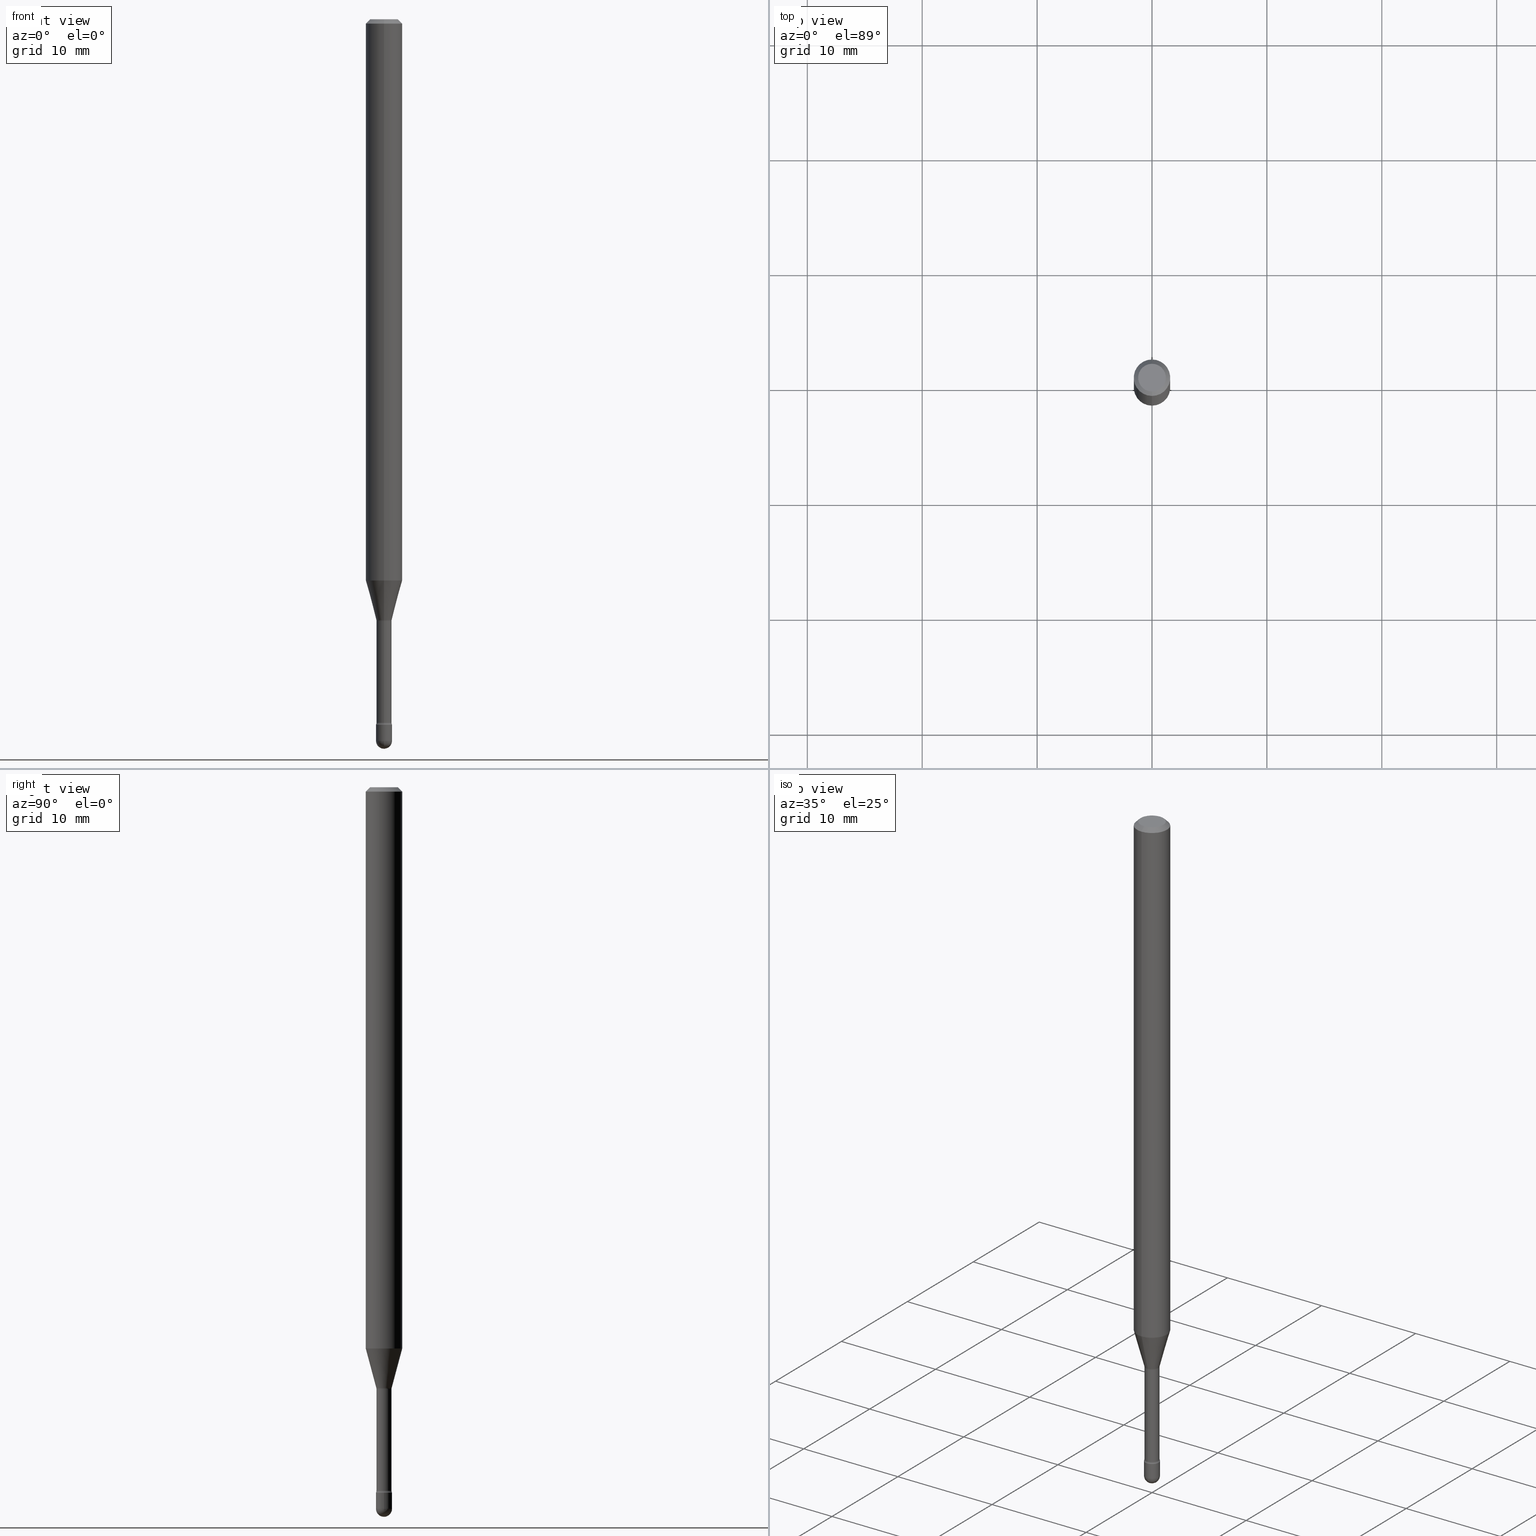
[diagram: canonical four-view strip — front | top / right | iso, engineering-drawing reading convention]
A machine part, canonical four-view strip (front | top / right | iso — engineering-drawing reading convention). The complete STEP part file that produces these views, byte-faithful:
ISO-10303-21;
HEADER;
FILE_DESCRIPTION (( 'STEP AP203' ),
    '1' );
FILE_NAME ('03870.STEP',
    '2024-04-09T20:51:50',
    ( '' ),
    ( '' ),
    'SwSTEP 2.0',
    'SolidWorks 2023',
    '' );
FILE_SCHEMA (( 'CONFIG_CONTROL_DESIGN' ));
ENDSEC;

DATA;
#1 = CARTESIAN_POINT ( 'NONE',  ( 6.046421623292749742E-29, -8.632687610289676724E-15, -2.472500000000000142 ) ) ;
#2 =( LENGTH_UNIT ( ) NAMED_UNIT ( * ) SI_UNIT ( $, .METRE. ) );
#3 = DIRECTION ( 'NONE',  ( -2.445468806185136597E-29, 3.491481338843145583E-15, 1.000000000000000000 ) ) ;
#4 = VERTEX_POINT ( 'NONE', #261 ) ;
#5 = APPROVAL_ROLE ( '' ) ;
#6 = DIRECTION ( 'NONE',  ( -2.445394526071442665E-29, 3.491587712193716491E-15, 1.000000000000000000 ) ) ;
#7 = CIRCLE ( 'NONE', #226, 0.02750000000000000014 ) ;
#8 = ORIENTED_EDGE ( 'NONE', *, *, #98, .F. ) ;
#9 = CARTESIAN_POINT ( 'NONE',  ( 4.440892098501093562E-16, 0.06249999999999326233, -1.923220337902601162 ) ) ;
#10 = EDGE_LOOP ( 'NONE', ( #102, #31, #296, #233, #194 ) ) ;
#11 = APPROVAL_STATUS ( 'not_yet_approved' ) ;
#12 = ADVANCED_FACE ( 'NONE', ( #474 ), #35, .T. ) ;
#13 = LINE ( 'NONE', #313, #379 ) ;
#14 = CALENDAR_DATE ( 2024, 9, 4 ) ;
#15 = CARTESIAN_POINT ( 'NONE',  ( -1.805095852181311577E-16, -0.02585000000000842874, -2.410160592130893509 ) ) ;
#16 = ORIENTED_EDGE ( 'NONE', *, *, #453, .F. ) ;
#17 = CIRCLE ( 'NONE', #411, 0.01500000000000002720 ) ;
#18 = AXIS2_PLACEMENT_3D ( 'NONE', #54, #486, #489 ) ;
#19 = DIRECTION ( 'NONE',  ( -2.445394526071442946E-29, 3.491587712193716491E-15, 1.000000000000000000 ) ) ;
#20 = ORIENTED_EDGE ( 'NONE', *, *, #180, .T. ) ;
#21 = DIRECTION ( 'NONE',  ( -2.445468806185136597E-29, 3.491481338843145583E-15, 1.000000000000000000 ) ) ;
#22 = MANIFOLD_SOLID_BREP ( 'Body-Move/Copy2[2]', #210 ) ;
#23 = ORIENTED_EDGE ( 'NONE', *, *, #453, .T. ) ;
#24 = EDGE_LOOP ( 'NONE', ( #506, #284, #195, #430 ) ) ;
#25 = CARTESIAN_POINT ( 'NONE',  ( -1.840786654675861532E-16, -0.02636111260567115810, -2.058092501787273321 ) ) ;
#26 = ORIENTED_EDGE ( 'NONE', *, *, #550, .T. ) ;
#27 = VERTEX_POINT ( 'NONE', #262 ) ;
#28 = CIRCLE ( 'NONE', #127, 0.02750000000000000014 ) ;
#29 = CC_DESIGN_APPROVAL ( #129, ( #539 ) ) ;
#30 = DIRECTION ( 'NONE',  ( -1.000000000000000000, 6.982962677686265922E-15, -4.883557194083112340E-29 ) ) ;
#31 = ORIENTED_EDGE ( 'NONE', *, *, #329, .T. ) ;
#32 = VECTOR ( 'NONE', #386, 39.37007874015748143 ) ;
#33 = CARTESIAN_POINT ( 'NONE',  ( 3.668091789107184615E-31, -5.237381568290603086E-17, -0.01500000000000008271 ) ) ;
#34 = ORIENTED_EDGE ( 'NONE', *, *, #420, .F. ) ;
#35 = CYLINDRICAL_SURFACE ( 'NONE', #475, 0.02585000000000000839 ) ;
#36 = CARTESIAN_POINT ( 'NONE',  ( 5.910698104549475684E-29, -8.438910395983882728E-15, -2.417000000000000259 ) ) ;
#37 = DIRECTION ( 'NONE',  ( -2.445394526071442946E-29, 3.491587712193716491E-15, 1.000000000000000000 ) ) ;
#38 = CIRCLE ( 'NONE', #446, 0.06250000000000000000 ) ;
#39 = DIRECTION ( 'NONE',  ( 1.000000000000000000, -6.982962677686266711E-15, 4.876176775795935793E-29 ) ) ;
#40 = CARTESIAN_POINT ( 'NONE',  ( -4.287811248607203282E-16, -0.06250000000000005551, -0.01499999999999986587 ) ) ;
#41 = CARTESIAN_POINT ( 'NONE',  ( 2.023012720015544593E-45, -2.889517326062876332E-31, -8.274197933739329035E-17 ) ) ;
#42 = CARTESIAN_POINT ( 'NONE',  ( 5.893972545952798109E-29, -8.415030731040159309E-15, -2.410160592130893509 ) ) ;
#43 = ORIENTED_EDGE ( 'NONE', *, *, #246, .T. ) ;
#44 = ADVANCED_FACE ( 'NONE', ( #77 ), #231, .F. ) ;
#45 = AXIS2_PLACEMENT_3D ( 'NONE', #64, #247, #235 ) ;
#46 = CARTESIAN_POINT ( 'NONE',  ( 3.668091789107184615E-31, -5.237381568290603086E-17, -0.01500000000000008271 ) ) ;
#47 = ORIENTED_EDGE ( 'NONE', *, *, #394, .F. ) ;
#48 = CYLINDRICAL_SURFACE ( 'NONE', #336, 0.02750000000000000014 ) ;
#49 = DIRECTION ( 'NONE',  ( 6.982962677686265922E-15, 1.000000000000000000, 0.000000000000000000 ) ) ;
#50 = DIRECTION ( 'NONE',  ( -6.982962677686265922E-15, -1.000000000000000000, 3.491587712193716491E-15 ) ) ;
#51 = AXIS2_PLACEMENT_3D ( 'NONE', #375, #142, #146 ) ;
#52 = ORIENTED_EDGE ( 'NONE', *, *, #414, .F. ) ;
#53 = DIRECTION ( 'NONE',  ( 0.000000000000000000, 0.000000000000000000, 1.000000000000000000 ) ) ;
#54 = CARTESIAN_POINT ( 'NONE',  ( 2.023012720015544593E-45, -2.889517326062876332E-31, -8.274197933739329035E-17 ) ) ;
#55 = EDGE_CURVE ( 'NONE', #349, #147, #116, .T. ) ;
#56 = VERTEX_POINT ( 'NONE', #382 ) ;
#57 =( NAMED_UNIT ( * ) SI_UNIT ( $, .STERADIAN. ) SOLID_ANGLE_UNIT ( ) );
#58 = DIRECTION ( 'NONE',  ( 1.000000000000000000, -6.982962677686279332E-15, 0.000000000000000000 ) ) ;
#59 = ORIENTED_EDGE ( 'NONE', *, *, #477, .T. ) ;
#60 = CC_DESIGN_PERSON_AND_ORGANIZATION_ASSIGNMENT ( #279, #179, ( #479 ) ) ;
#61 = COORDINATED_UNIVERSAL_TIME_OFFSET ( 5, 0, .BEHIND. ) ;
#62 = PLANE ( 'NONE',  #511 ) ;
#63 = AXIS2_PLACEMENT_3D ( 'NONE', #461, #322, #415 ) ;
#64 = CARTESIAN_POINT ( 'NONE',  ( 6.046421623292749742E-29, -8.632687610289676724E-15, -2.472500000000000142 ) ) ;
#65 = ORIENTED_EDGE ( 'NONE', *, *, #217, .F. ) ;
#66 = CARTESIAN_POINT ( 'NONE',  ( -1.169113584055446105E-44, 1.669184350826100908E-30, 4.780733988912460139E-16 ) ) ;
#67 = ORIENTED_EDGE ( 'NONE', *, *, #180, .F. ) ;
#68 = DIRECTION ( 'NONE',  ( 6.982962677686265922E-15, 1.000000000000000000, -3.491587712193716491E-15 ) ) ;
#69 = EDGE_LOOP ( 'NONE', ( #85, #337, #112, #319 ) ) ;
#70 = ORIENTED_EDGE ( 'NONE', *, *, #439, .T. ) ;
#71 = CIRCLE ( 'NONE', #401, 0.02585000000000001533 ) ;
#72 = DIRECTION ( 'NONE',  ( -2.445394526071442946E-29, 3.491587712193716491E-15, 1.000000000000000000 ) ) ;
#73 = ORIENTED_EDGE ( 'NONE', *, *, #416, .F. ) ;
#74 = ADVANCED_FACE ( 'NONE', ( #338 ), #389, .T. ) ;
#75 = CIRCLE ( 'NONE', #504, 0.02584999999999999798 ) ;
#76 = DIRECTION ( 'NONE',  ( -2.445394526071442946E-29, 3.491587712193716491E-15, 1.000000000000000000 ) ) ;
#77 = FACE_OUTER_BOUND ( 'NONE', #464, .T. ) ;
#78 = CC_DESIGN_DATE_AND_TIME_ASSIGNMENT ( #91, #452, ( #193 ) ) ;
#79 = DIRECTION ( 'NONE',  ( -2.445394526071442946E-29, 3.491587712193716491E-15, 1.000000000000000000 ) ) ;
#80 = DIRECTION ( 'NONE',  ( -6.982962677686266711E-15, -1.000000000000000000, 0.000000000000000000 ) ) ;
#81 = CIRCLE ( 'NONE', #321, 0.06250000000000000000 ) ;
#82 = DIRECTION ( 'NONE',  ( -2.445468806185136877E-29, 3.491481338843145188E-15, 1.000000000000000000 ) ) ;
#83 = DIRECTION ( 'NONE',  ( -6.982962677686265922E-15, -1.000000000000000000, 3.491587712193716491E-15 ) ) ;
#84 = EDGE_CURVE ( 'NONE', #27, #56, #471, .T. ) ;
#85 = ORIENTED_EDGE ( 'NONE', *, *, #383, .T. ) ;
#86 = APPLICATION_CONTEXT ( 'configuration controlled 3d designs of mechanical parts and assemblies' ) ;
#87 = CARTESIAN_POINT ( 'NONE',  ( 0.02750000000000000014, -1.920314736363723444E-16, 1.340948613343882413E-30 ) ) ;
#88 = CONICAL_SURFACE ( 'NONE', #347, 0.02636111260566397288, 0.2617993877991497409 ) ;
#89 = CARTESIAN_POINT ( 'NONE',  ( 4.440892098500625669E-16, 0.06250000000000000000, 2.598491668791387825E-16 ) ) ;
#90 = CARTESIAN_POINT ( 'NONE',  ( 5.910698104549475684E-29, -8.438910395983882728E-15, -2.417000000000000259 ) ) ;
#91 = DATE_AND_TIME ( #95, #140 ) ;
#92 = CC_DESIGN_PERSON_AND_ORGANIZATION_ASSIGNMENT ( #317, #320, ( #539 ) ) ;
#93 = ADVANCED_FACE ( 'NONE', ( #124 ), #497, .F. ) ;
#94 = DIRECTION ( 'NONE',  ( -2.445394526071442665E-29, 3.491587712193716491E-15, 1.000000000000000000 ) ) ;
#95 = CALENDAR_DATE ( 2024, 9, 4 ) ;
#96 = LINE ( 'NONE', #89, #177 ) ;
#97 = CIRCLE ( 'NONE', #239, 0.02750000000000000014 ) ;
#98 = EDGE_CURVE ( 'NONE', #293, #56, #75, .T. ) ;
#99 = APPROVAL_ROLE ( '' ) ;
#100 = CARTESIAN_POINT ( 'NONE',  ( 3.668091789107184615E-31, -5.237381568290603086E-17, -0.01500000000000008271 ) ) ;
#101 = CARTESIAN_POINT ( 'NONE',  ( 6.046421623292748621E-29, -8.632687610289675147E-15, -2.472499999999999254 ) ) ;
#102 = ORIENTED_EDGE ( 'NONE', *, *, #508, .F. ) ;
#103 = ORIENTED_EDGE ( 'NONE', *, *, #343, .F. ) ;
#104 = CALENDAR_DATE ( 2024, 9, 4 ) ;
#105 = DIRECTION ( 'NONE',  ( 1.000000000000000000, -7.105427357601001070E-15, 4.926316811239915020E-29 ) ) ;
#106 = AXIS2_PLACEMENT_3D ( 'NONE', #428, #554, #335 ) ;
#107 = LOCAL_TIME ( 16, 51, 50.00000000000000000, #490 ) ;
#108 = DIRECTION ( 'NONE',  ( -6.982962677686266711E-15, -1.000000000000000000, 0.000000000000000000 ) ) ;
#109 = ORIENTED_EDGE ( 'NONE', *, *, #183, .F. ) ;
#110 = DIRECTION ( 'NONE',  ( -6.982962677686265922E-15, -1.000000000000000000, 4.370956789862821150E-15 ) ) ;
#111 = FACE_OUTER_BOUND ( 'NONE', #346, .T. ) ;
#112 = ORIENTED_EDGE ( 'NONE', *, *, #477, .F. ) ;
#113 = EDGE_CURVE ( 'NONE', #4, #549, #258, .T. ) ;
#114 = AXIS2_PLACEMENT_3D ( 'NONE', #540, #190, #419 ) ;
#115 = CARTESIAN_POINT ( 'NONE',  ( 3.668091789107184615E-31, -5.237381568290603086E-17, -0.01500000000000008271 ) ) ;
#116 = LINE ( 'NONE', #432, #201 ) ;
#117 = CARTESIAN_POINT ( 'NONE',  ( 5.032848138019279086E-29, -7.186010489798467438E-15, -2.058092501787273321 ) ) ;
#118 = ORIENTED_EDGE ( 'NONE', *, *, #380, .T. ) ;
#119 = DIRECTION ( 'NONE',  ( -2.445468806185136597E-29, 3.491481338843145583E-15, 1.000000000000000000 ) ) ;
#120 = EDGE_LOOP ( 'NONE', ( #286, #118, #541, #167 ) ) ;
#121 = DIRECTION ( 'NONE',  ( 1.000000000000000000, -6.982962677686279332E-15, 0.000000000000000000 ) ) ;
#122 = CC_DESIGN_PERSON_AND_ORGANIZATION_ASSIGNMENT ( #368, #456, ( #193 ) ) ;
#123 = LOCAL_TIME ( 16, 51, 50.00000000000000000, #237 ) ;
#124 = FACE_OUTER_BOUND ( 'NONE', #204, .T. ) ;
#125 = AXIS2_PLACEMENT_3D ( 'NONE', #308, #37, #558 ) ;
#126 = ORIENTED_EDGE ( 'NONE', *, *, #98, .T. ) ;
#127 = AXIS2_PLACEMENT_3D ( 'NONE', #559, #257, #384 ) ;
#128 = CARTESIAN_POINT ( 'NONE',  ( 5.032848138019279086E-29, -7.186010489798467438E-15, -2.058092501787273321 ) ) ;
#129 = APPROVAL ( #11, 'UNSPECIFIED' ) ;
#130 = LINE ( 'NONE', #266, #406 ) ;
#131 = EDGE_LOOP ( 'NONE', ( #433, #501, #524, #73 ) ) ;
#132 = SECURITY_CLASSIFICATION_LEVEL ( 'unclassified' ) ;
#133 = VECTOR ( 'NONE', #561, 39.37007874015748143 ) ;
#134 = CARTESIAN_POINT ( 'NONE',  ( -1.805095852181900264E-16, -0.02585000000000000839, 5.683309412514536099E-16 ) ) ;
#135 = VERTEX_POINT ( 'NONE', #277 ) ;
#136 = PERSON_AND_ORGANIZATION_ROLE ( 'design_supplier' ) ;
#137 = ADVANCED_FACE ( 'NONE', ( #482 ), #215, .T. ) ;
#138 = ADVANCED_FACE ( 'NONE', ( #530 ), #481, .T. ) ;
#139 = DIRECTION ( 'NONE',  ( 2.445394526071442665E-29, -3.491587712193716491E-15, -1.000000000000000000 ) ) ;
#140 = LOCAL_TIME ( 16, 51, 50.00000000000000000, #61 ) ;
#141 = EDGE_LOOP ( 'NONE', ( #519, #467, #326, #65 ) ) ;
#142 = DIRECTION ( 'NONE',  ( -2.445394526071442946E-29, 3.491587712193716491E-15, 1.000000000000000000 ) ) ;
#143 = VERTEX_POINT ( 'NONE', #181 ) ;
#144 = ORIENTED_EDGE ( 'NONE', *, *, #278, .T. ) ;
#145 = DESIGN_CONTEXT ( 'detailed design', #86, 'design' ) ;
#146 = DIRECTION ( 'NONE',  ( -6.982962677686265922E-15, -1.000000000000000000, 0.000000000000000000 ) ) ;
#147 = VERTEX_POINT ( 'NONE', #395 ) ;
#148 = DIRECTION ( 'NONE',  ( -6.982962677686265922E-15, -1.000000000000000000, 3.483106191921935554E-15 ) ) ;
#149 = CIRCLE ( 'NONE', #106, 0.02750000000000000014 ) ;
#150 = DIRECTION ( 'NONE',  ( -6.982962677686263555E-15, -1.000000000000000000, 0.000000000000000000 ) ) ;
#151 = ORIENTED_EDGE ( 'NONE', *, *, #254, .F. ) ;
#152 = ORIENTED_EDGE ( 'NONE', *, *, #238, .T. ) ;
#153 = DIRECTION ( 'NONE',  ( -2.445394526071442946E-29, 3.491587712193716491E-15, 1.000000000000000000 ) ) ;
#154 = ORIENTED_EDGE ( 'NONE', *, *, #84, .T. ) ;
#155 = DIRECTION ( 'NONE',  ( 6.982962677686265922E-15, 1.000000000000000000, 0.000000000000000000 ) ) ;
#156 = DIRECTION ( 'NONE',  ( -2.445394526071442946E-29, 3.491587712193716491E-15, 1.000000000000000000 ) ) ;
#157 = CIRCLE ( 'NONE', #483, 0.06250000000000000000 ) ;
#158 = CIRCLE ( 'NONE', #445, 0.02750000000000009034 ) ;
#159 = CYLINDRICAL_SURFACE ( 'NONE', #457, 0.02585000000000000839 ) ;
#160 = VERTEX_POINT ( 'NONE', #228 ) ;
#161 = AXIS2_PLACEMENT_3D ( 'NONE', #309, #355, #527 ) ;
#162 = FACE_OUTER_BOUND ( 'NONE', #141, .T. ) ;
#163 = ORIENTED_EDGE ( 'NONE', *, *, #55, .F. ) ;
#164 = DIRECTION ( 'NONE',  ( 1.000000000000000000, -6.982962677686265922E-15, 4.876176775795935793E-29 ) ) ;
#165 = CARTESIAN_POINT ( 'NONE',  ( 0.02750000000000000014, -8.630941869620256010E-15, -2.417000000000000259 ) ) ;
#166 = AXIS2_PLACEMENT_3D ( 'NONE', #36, #208, #164 ) ;
#167 = ORIENTED_EDGE ( 'NONE', *, *, #364, .F. ) ;
#168 = ADVANCED_FACE ( 'NONE', ( #311 ), #232, .T. ) ;
#169 = CARTESIAN_POINT ( 'NONE',  ( 1.953992523340867413E-16, 0.02749999999999157632, -2.417000000000000259 ) ) ;
#170 = EDGE_CURVE ( 'NONE', #410, #290, #158, .T. ) ;
#171 = DIRECTION ( 'NONE',  ( 1.000000000000000000, -6.982962677686266711E-15, 4.876176775795935793E-29 ) ) ;
#172 = VERTEX_POINT ( 'NONE', #169 ) ;
#173 = COORDINATED_UNIVERSAL_TIME_OFFSET ( 5, 0, .BEHIND. ) ;
#174 = CIRCLE ( 'NONE', #353, 0.04749999999999999362 ) ;
#175 = DIRECTION ( 'NONE',  ( -6.982962677686265922E-15, -1.000000000000000000, 3.491587712193716491E-15 ) ) ;
#176 = DIRECTION ( 'NONE',  ( 1.000000000000000000, 0.000000000000000000, 0.000000000000000000 ) ) ;
#177 = VECTOR ( 'NONE', #178, 39.37007874015748143 ) ;
#178 = DIRECTION ( 'NONE',  ( -2.445394526071442665E-29, 3.491587712193716491E-15, 1.000000000000000000 ) ) ;
#179 = PERSON_AND_ORGANIZATION_ROLE ( 'design_owner' ) ;
#180 = EDGE_CURVE ( 'NONE', #4, #555, #427, .T. ) ;
#181 = CARTESIAN_POINT ( 'NONE',  ( -1.953992523339673522E-16, -0.02750000000000868070, -2.472499999999999254 ) ) ;
#182 = DATE_AND_TIME ( #14, #306 ) ;
#183 = EDGE_CURVE ( 'NONE', #27, #172, #188, .T. ) ;
#184 = CIRCLE ( 'NONE', #45, 0.02750000000000009034 ) ;
#185 = DIRECTION ( 'NONE',  ( 7.105427357600997914E-15, 1.000000000000000000, 0.000000000000000000 ) ) ;
#186 = AXIS2_PLACEMENT_3D ( 'NONE', #370, #30, #192 ) ;
#187 = VERTEX_POINT ( 'NONE', #316 ) ;
#188 = CIRCLE ( 'NONE', #267, 0.01500000000000002720 ) ;
#189 = ORIENTED_EDGE ( 'NONE', *, *, #329, .F. ) ;
#190 = DIRECTION ( 'NONE',  ( -2.445394526071442946E-29, 3.491587712193716491E-15, 1.000000000000000000 ) ) ;
#191 = ORIENTED_EDGE ( 'NONE', *, *, #416, .T. ) ;
#192 = DIRECTION ( 'NONE',  ( -6.982962677686263555E-15, -1.000000000000000000, 0.000000000000000000 ) ) ;
#193 = PRODUCT_DEFINITION ( 'UNKNOWN', '', #547, #145 ) ;
#194 = ORIENTED_EDGE ( 'NONE', *, *, #278, .F. ) ;
#195 = ORIENTED_EDGE ( 'NONE', *, *, #343, .T. ) ;
#196 = CARTESIAN_POINT ( 'NONE',  ( 2.902567075580512468E-16, 0.04084999999999280179, -2.061974787463811243 ) ) ;
#197 = AXIS2_PLACEMENT_3D ( 'NONE', #117, #153, #507 ) ;
#198 = AXIS2_PLACEMENT_3D ( 'NONE', #324, #53, #176 ) ;
#199 = AXIS2_PLACEMENT_3D ( 'NONE', #407, #6, #175 ) ;
#200 = CARTESIAN_POINT ( 'NONE',  ( 5.042341858161331216E-29, -7.199565830761894010E-15, -2.061974787463811243 ) ) ;
#201 = VECTOR ( 'NONE', #302, 39.37007874015748854 ) ;
#202 = EDGE_LOOP ( 'NONE', ( #388, #70, #43, #281 ) ) ;
#203 = DIRECTION ( 'NONE',  ( -6.982962677686266711E-15, -1.000000000000000000, 3.491587712193716491E-15 ) ) ;
#204 = EDGE_LOOP ( 'NONE', ( #425, #378, #563, #126 ) ) ;
#205 = CARTESIAN_POINT ( 'NONE',  ( -0.02750000000000000014, -8.340399750802750818E-15, -2.417000000000000259 ) ) ;
#206 = VERTEX_POINT ( 'NONE', #9 ) ;
#207 = AXIS2_PLACEMENT_3D ( 'NONE', #33, #512, #431 ) ;
#208 = DIRECTION ( 'NONE',  ( -2.438088387897960049E-29, 3.491481338843145188E-15, 1.000000000000000000 ) ) ;
#209 = CARTESIAN_POINT ( 'NONE',  ( -1.169113584055446105E-44, 1.669184350826100908E-30, 4.780733988912460139E-16 ) ) ;
#210 = CLOSED_SHELL ( 'NONE', ( #263, #12, #358, #137, #74, #348, #138, #291, #516, #332, #214, #44, #491, #93 ) ) ;
#211 = CARTESIAN_POINT ( 'NONE',  ( 0.02750000000000000014, -8.727830476773152219E-15, -2.472499999999999254 ) ) ;
#212 = DIRECTION ( 'NONE',  ( -6.982962677686265922E-15, -1.000000000000000000, 3.491587712193716491E-15 ) ) ;
#213 = MANIFOLD_SOLID_BREP ( 'Body-Move/Copy2[1]', #423 ) ;
#214 = ADVANCED_FACE ( 'NONE', ( #362 ), #492, .F. ) ;
#215 = CONICAL_SURFACE ( 'NONE', #544, 0.06250000000000000000, 0.7853981633974483900 ) ;
#216 = ORIENTED_EDGE ( 'NONE', *, *, #271, .F. ) ;
#217 = EDGE_CURVE ( 'NONE', #143, #509, #357, .T. ) ;
#218 = CARTESIAN_POINT ( 'NONE',  ( 3.840629472727447874E-16, 0.04749999999999999362, -2.485923956665947867E-16 ) ) ;
#219 = VECTOR ( 'NONE', #264, 39.37007874015748143 ) ;
#220 = DIRECTION ( 'NONE',  ( -6.982962677686265922E-15, -1.000000000000000000, 0.000000000000000000 ) ) ;
#221 = CARTESIAN_POINT ( 'NONE',  ( 0.000000000000000000, 0.000000000000000000, 0.000000000000000000 ) ) ;
#222 = APPROVAL_STATUS ( 'not_yet_approved' ) ;
#223 = APPLICATION_CONTEXT ( 'configuration controlled 3d designs of mechanical parts and assemblies' ) ;
#224 = DIRECTION ( 'NONE',  ( 1.000000000000000000, -6.982962677686265922E-15, 4.883557194083112340E-29 ) ) ;
#225 = APPLICATION_PROTOCOL_DEFINITION ( 'international standard', 'config_control_design', 1994, #223 ) ;
#226 = AXIS2_PLACEMENT_3D ( 'NONE', #101, #496, #58 ) ;
#227 = LOCAL_TIME ( 16, 51, 50.00000000000000000, #173 ) ;
#228 = CARTESIAN_POINT ( 'NONE',  ( -1.920314736363132784E-16, -0.02750000000000845865, -2.416999999999999815 ) ) ;
#229 = EDGE_CURVE ( 'NONE', #206, #135, #96, .T. ) ;
#230 = DATE_TIME_ROLE ( 'classification_date' ) ;
#231 = TOROIDAL_SURFACE ( 'NONE', #376, 0.04085000000000003906, 0.01500000000000002373 ) ;
#232 = SPHERICAL_SURFACE ( 'NONE', #285, 0.02750000000000009034 ) ;
#233 = ORIENTED_EDGE ( 'NONE', *, *, #271, .T. ) ;
#234 = APPROVAL_ROLE ( '' ) ;
#235 = DIRECTION ( 'NONE',  ( -7.105427357601001070E-15, -1.000000000000000000, 0.000000000000000000 ) ) ;
#236 = ORIENTED_EDGE ( 'NONE', *, *, #84, .F. ) ;
#237 = COORDINATED_UNIVERSAL_TIME_OFFSET ( 5, 0, .BEHIND. ) ;
#238 = EDGE_CURVE ( 'NONE', #187, #206, #130, .T. ) ;
#239 = AXIS2_PLACEMENT_3D ( 'NONE', #330, #505, #333 ) ;
#240 = LINE ( 'NONE', #295, #327 ) ;
#241 = CC_DESIGN_APPROVAL ( #525, ( #193 ) ) ;
#242 = CC_DESIGN_DATE_AND_TIME_ASSIGNMENT ( #447, #230, ( #539 ) ) ;
#243 = DIRECTION ( 'NONE',  ( 4.937700262164548042E-15, 0.7071067811865451302, -0.7071067811865499042 ) ) ;
#244 = FACE_OUTER_BOUND ( 'NONE', #397, .T. ) ;
#245 = EDGE_LOOP ( 'NONE', ( #462, #152, #494, #163 ) ) ;
#246 = EDGE_CURVE ( 'NONE', #147, #549, #13, .T. ) ;
#247 = DIRECTION ( 'NONE',  ( -1.000000000000000000, 7.105427357601001070E-15, -4.926315508542082329E-29 ) ) ;
#248 = ORIENTED_EDGE ( 'NONE', *, *, #254, .T. ) ;
#249 = AXIS2_PLACEMENT_3D ( 'NONE', #517, #562, #155 ) ;
#250 = AXIS2_PLACEMENT_3D ( 'NONE', #532, #480, #121 ) ;
#251 = ORIENTED_EDGE ( 'NONE', *, *, #394, .T. ) ;
#252 = DIRECTION ( 'NONE',  ( -6.982962677686265922E-15, -1.000000000000000000, 3.483106191921935554E-15 ) ) ;
#253 = ORIENTED_EDGE ( 'NONE', *, *, #318, .T. ) ;
#254 = EDGE_CURVE ( 'NONE', #360, #293, #444, .T. ) ;
#255 = CARTESIAN_POINT ( 'NONE',  ( -1.169113584055446105E-44, 1.669184350826100908E-30, 4.780733988912460139E-16 ) ) ;
#256 = CARTESIAN_POINT ( 'NONE',  ( 1.836752971939859330E-16, 0.02585000000000000839, 3.878158565310384180E-16 ) ) ;
#257 = DIRECTION ( 'NONE',  ( -2.445468806185136597E-29, 3.491481338843145583E-15, 1.000000000000000000 ) ) ;
#258 = LINE ( 'NONE', #40, #133 ) ;
#259 = AXIS2_PLACEMENT_3D ( 'NONE', #100, #19, #148 ) ;
#260 = FACE_OUTER_BOUND ( 'NONE', #24, .T. ) ;
#261 = CARTESIAN_POINT ( 'NONE',  ( -3.773273898774340269E-16, -0.04749999999999999362, 8.310843699180823065E-17 ) ) ;
#262 = CARTESIAN_POINT ( 'NONE',  ( 1.895372747640658455E-16, 0.02584999999999160192, -2.410160592130893509 ) ) ;
#263 = ADVANCED_FACE ( 'NONE', ( #440 ), #546, .F. ) ;
#264 = DIRECTION ( 'NONE',  ( -2.445468806185136877E-29, 3.491481338843145188E-15, 1.000000000000000000 ) ) ;
#265 = CIRCLE ( 'NONE', #186, 0.01500000000000002720 ) ;
#266 = CARTESIAN_POINT ( 'NONE',  ( 1.873069706851357136E-16, 0.02636111260565679112, -2.058092501787273321 ) ) ;
#267 = AXIS2_PLACEMENT_3D ( 'NONE', #400, #404, #351 ) ;
#268 = PERSON ( 'UNSPECIFIED', 'UNSPECIFIED', 'UNSPECIFIED', ('UNSPECIFIED'), ('UNSPECIFIED'), ('UNSPECIFIED') ) ;
#269 = DIRECTION ( 'NONE',  ( -2.445394526071442946E-29, 3.491587712193716491E-15, 1.000000000000000000 ) ) ;
#270 = PERSON_AND_ORGANIZATION ( #268, #484 ) ;
#271 = EDGE_CURVE ( 'NONE', #509, #565, #396, .T. ) ;
#272 = ADVANCED_FACE ( 'NONE', ( #526 ), #48, .T. ) ;
#273 = DIRECTION ( 'NONE',  ( -2.445394526071442665E-29, 3.491587712193716491E-15, 1.000000000000000000 ) ) ;
#274 = CALENDAR_DATE ( 2024, 9, 4 ) ;
#275 = CIRCLE ( 'NONE', #51, 0.02585000000000001533 ) ;
#276 = APPROVAL_PERSON_ORGANIZATION ( #405, #129, #99 ) ;
#277 = CARTESIAN_POINT ( 'NONE',  ( 4.440892098501099478E-16, 0.06249999999999995143, -0.01500000000000030129 ) ) ;
#278 = EDGE_CURVE ( 'NONE', #459, #565, #536, .T. ) ;
#279 = PERSON_AND_ORGANIZATION ( #268, #484 ) ;
#280 = DIRECTION ( 'NONE',  ( -2.445394526071442946E-29, 3.491587712193716491E-15, 1.000000000000000000 ) ) ;
#281 = ORIENTED_EDGE ( 'NONE', *, *, #315, .F. ) ;
#282 = APPROVAL_STATUS ( 'not_yet_approved' ) ;
#283 = DIRECTION ( 'NONE',  ( -2.445394526071442946E-29, 3.491587712193716491E-15, 1.000000000000000000 ) ) ;
#284 = ORIENTED_EDGE ( 'NONE', *, *, #520, .F. ) ;
#285 = AXIS2_PLACEMENT_3D ( 'NONE', #1, #442, #49 ) ;
#286 = ORIENTED_EDGE ( 'NONE', *, *, #318, .F. ) ;
#287 = APPROVAL_DATE_TIME ( #361, #525 ) ;
#288 = CIRCLE ( 'NONE', #374, 0.01500000000000002720 ) ;
#289 = CARTESIAN_POINT ( 'NONE',  ( 4.703032486736291422E-29, -6.715092499661768359E-15, -1.923220337902600940 ) ) ;
#290 = VERTEX_POINT ( 'NONE', #545 ) ;
#291 = ADVANCED_FACE ( 'NONE', ( #377 ), #458, .T. ) ;
#292 = DIRECTION ( 'NONE',  ( -2.445394526071442946E-29, 3.491587712193716491E-15, 1.000000000000000000 ) ) ;
#293 = VERTEX_POINT ( 'NONE', #371 ) ;
#294 = DIMENSIONAL_EXPONENTS ( 1.000000000000000000, 0.000000000000000000, 0.000000000000000000, 0.000000000000000000, 0.000000000000000000, 0.000000000000000000, 0.000000000000000000 ) ;
#295 = CARTESIAN_POINT ( 'NONE',  ( 4.364351673553919652E-16, 0.06249999999999995143, -0.01500000000000030129 ) ) ;
#296 = ORIENTED_EDGE ( 'NONE', *, *, #217, .T. ) ;
#297 = DIRECTION ( 'NONE',  ( -6.982962677686265922E-15, -1.000000000000000000, 3.491587712193714913E-15 ) ) ;
#298 = AXIS2_PLACEMENT_3D ( 'NONE', #90, #21, #412 ) ;
#299 = CARTESIAN_POINT ( 'NONE',  ( -4.364351673553912750E-16, -0.06250000000000005551, -0.01499999999999986587 ) ) ;
#300 = DIRECTION ( 'NONE',  ( -2.445394526071442946E-29, 3.491587712193716491E-15, 1.000000000000000000 ) ) ;
#301 = CYLINDRICAL_SURFACE ( 'NONE', #385, 0.02750000000000000014 ) ;
#302 = DIRECTION ( 'NONE',  ( -1.807323732225326589E-15, -0.2588190451025176864, 0.9659258262890690894 ) ) ;
#303 = CARTESIAN_POINT ( 'NONE',  ( 5.893793518949994721E-29, -8.415287107897758310E-15, -2.410160592130893509 ) ) ;
#304 = ORIENTED_EDGE ( 'NONE', *, *, #55, .T. ) ;
#305 = CIRCLE ( 'NONE', #437, 0.02636111260566397288 ) ;
#306 = LOCAL_TIME ( 16, 51, 50.00000000000000000, #408 ) ;
#307 = ADVANCED_BREP_SHAPE_REPRESENTATION ( '03870', ( #213, #22, #198 ), #448 ) ;
#308 = CARTESIAN_POINT ( 'NONE',  ( 5.042495021882977278E-29, -7.199346491594957995E-15, -2.061974787463811243 ) ) ;
#309 = CARTESIAN_POINT ( 'NONE',  ( 6.046421623292748621E-29, -8.632687610289675147E-15, -2.472499999999999254 ) ) ;
#310 = PRODUCT_DEFINITION_SHAPE ( 'NONE', 'NONE',  #193 ) ;
#311 = FACE_OUTER_BOUND ( 'NONE', #455, .T. ) ;
#312 = CONICAL_SURFACE ( 'NONE', #207, 0.06250000000000000000, 0.7853981633974483900 ) ;
#313 = CARTESIAN_POINT ( 'NONE',  ( -4.364351673553916201E-16, -0.06250000000000000000, 6.962976309033533439E-16 ) ) ;
#314 = DATE_AND_TIME ( #534, #123 ) ;
#315 = EDGE_CURVE ( 'NONE', #135, #549, #564, .T. ) ;
#316 = CARTESIAN_POINT ( 'NONE',  ( 3.156980902676227198E-16, 0.02636111260565679112, -2.058092501787273321 ) ) ;
#317 = PERSON_AND_ORGANIZATION ( #268, #484 ) ;
#318 = EDGE_CURVE ( 'NONE', #187, #349, #305, .T. ) ;
#319 = ORIENTED_EDGE ( 'NONE', *, *, #246, .F. ) ;
#320 = PERSON_AND_ORGANIZATION_ROLE ( 'classification_officer' ) ;
#321 = AXIS2_PLACEMENT_3D ( 'NONE', #115, #465, #252 ) ;
#322 = DIRECTION ( 'NONE',  ( -2.445468806185136597E-29, 3.491481338843145583E-15, 1.000000000000000000 ) ) ;
#323 = ORIENTED_EDGE ( 'NONE', *, *, #439, .F. ) ;
#324 = CARTESIAN_POINT ( 'NONE',  ( 0.000000000000000000, 0.000000000000000000, 0.000000000000000000 ) ) ;
#325 = DIRECTION ( 'NONE',  ( -2.445394526071442946E-29, 3.491587712193716491E-15, 1.000000000000000000 ) ) ;
#326 = ORIENTED_EDGE ( 'NONE', *, *, #551, .F. ) ;
#327 = VECTOR ( 'NONE', #243, 39.37007874015748143 ) ;
#328 = CARTESIAN_POINT ( 'NONE',  ( 5.032848138019279086E-29, -7.186010489798467438E-15, -2.058092501787273321 ) ) ;
#329 = EDGE_CURVE ( 'NONE', #469, #143, #7, .T. ) ;
#330 = CARTESIAN_POINT ( 'NONE',  ( 5.910518569514678335E-29, -8.439167500372212858E-15, -2.417000000000000259 ) ) ;
#331 = EDGE_LOOP ( 'NONE', ( #67, #399, #59, #103 ) ) ;
#332 = ADVANCED_FACE ( 'NONE', ( #244 ), #62, .F. ) ;
#333 = DIRECTION ( 'NONE',  ( -6.982962677686266711E-15, -1.000000000000000000, 0.000000000000000000 ) ) ;
#334 = EDGE_CURVE ( 'NONE', #410, #143, #184, .T. ) ;
#335 = DIRECTION ( 'NONE',  ( -6.982962677686266711E-15, -1.000000000000000000, 0.000000000000000000 ) ) ;
#336 = AXIS2_PLACEMENT_3D ( 'NONE', #221, #3, #171 ) ;
#337 = ORIENTED_EDGE ( 'NONE', *, *, #229, .T. ) ;
#338 = FACE_OUTER_BOUND ( 'NONE', #69, .T. ) ;
#339 = CC_DESIGN_SECURITY_CLASSIFICATION ( #539, ( #547 ) ) ;
#340 = DIRECTION ( 'NONE',  ( -6.982962677686265922E-15, -1.000000000000000000, 0.000000000000000000 ) ) ;
#341 = APPROVAL ( #222, 'UNSPECIFIED' ) ;
#342 = DIRECTION ( 'NONE',  ( -6.982962677686265922E-15, -1.000000000000000000, 3.491587712193714913E-15 ) ) ;
#343 = EDGE_CURVE ( 'NONE', #555, #135, #240, .T. ) ;
#344 = DIRECTION ( 'NONE',  ( -2.445394526071442946E-29, 3.491587712193716491E-15, 1.000000000000000000 ) ) ;
#345 = DIRECTION ( 'NONE',  ( -2.445394526071442946E-29, 3.491587712193716491E-15, 1.000000000000000000 ) ) ;
#346 = EDGE_LOOP ( 'NONE', ( #236, #542, #248, #515 ) ) ;
#347 = AXIS2_PLACEMENT_3D ( 'NONE', #328, #283, #409 ) ;
#348 = ADVANCED_FACE ( 'NONE', ( #500 ), #88, .T. ) ;
#349 = VERTEX_POINT ( 'NONE', #25 ) ;
#350 = AXIS2_PLACEMENT_3D ( 'NONE', #522, #300, #212 ) ;
#351 = DIRECTION ( 'NONE',  ( 7.105427357600997914E-15, 1.000000000000000000, 0.000000000000000000 ) ) ;
#352 = DIRECTION ( 'NONE',  ( 2.445394526071442946E-29, -3.491587712193716491E-15, -1.000000000000000000 ) ) ;
#353 = AXIS2_PLACEMENT_3D ( 'NONE', #41, #79, #203 ) ;
#354 = ORIENTED_EDGE ( 'NONE', *, *, #551, .T. ) ;
#355 = DIRECTION ( 'NONE',  ( -2.445468806185136597E-29, 3.491481338843145583E-15, 1.000000000000000000 ) ) ;
#356 =( NAMED_UNIT ( * ) PLANE_ANGLE_UNIT ( ) SI_UNIT ( $, .RADIAN. ) );
#357 = CIRCLE ( 'NONE', #161, 0.02750000000000000014 ) ;
#358 = ADVANCED_FACE ( 'NONE', ( #413 ), #366, .F. ) ;
#359 = CARTESIAN_POINT ( 'NONE',  ( 6.046421623292749742E-29, -8.632687610289676724E-15, -2.472500000000000142 ) ) ;
#360 = VERTEX_POINT ( 'NONE', #15 ) ;
#361 = DATE_AND_TIME ( #104, #227 ) ;
#362 = FACE_OUTER_BOUND ( 'NONE', #418, .T. ) ;
#363 = APPROVAL_DATE_TIME ( #182, #129 ) ;
#364 = EDGE_CURVE ( 'NONE', #349, #293, #265, .T. ) ;
#365 = EDGE_CURVE ( 'NONE', #56, #293, #436, .T. ) ;
#366 = TOROIDAL_SURFACE ( 'NONE', #114, 0.04085000000000003906, 0.01500000000000002373 ) ;
#367 = CARTESIAN_POINT ( 'NONE',  ( 6.114847869110463221E-29, -8.727019457759036735E-15, -2.500000000000000000 ) ) ;
#368 = PERSON_AND_ORGANIZATION ( #268, #484 ) ;
#369 = VECTOR ( 'NONE', #273, 39.37007874015748143 ) ;
#370 = CARTESIAN_POINT ( 'NONE',  ( -2.852540253834335005E-16, -0.04085000000000719306, -2.061974787463810799 ) ) ;
#371 = CARTESIAN_POINT ( 'NONE',  ( -1.805095852181395393E-16, -0.02585000000000720055, -2.061974787463811243 ) ) ;
#372 = EDGE_LOOP ( 'NONE', ( #251, #373, #16, #216, #354 ) ) ;
#373 = ORIENTED_EDGE ( 'NONE', *, *, #508, .T. ) ;
#374 = AXIS2_PLACEMENT_3D ( 'NONE', #548, #498, #150 ) ;
#375 = CARTESIAN_POINT ( 'NONE',  ( 5.893793518949994721E-29, -8.415287107897758310E-15, -2.410160592130893509 ) ) ;
#376 = AXIS2_PLACEMENT_3D ( 'NONE', #42, #156, #83 ) ;
#377 = FACE_OUTER_BOUND ( 'NONE', #202, .T. ) ;
#378 = ORIENTED_EDGE ( 'NONE', *, *, #441, .F. ) ;
#379 = VECTOR ( 'NONE', #94, 39.37007874015748143 ) ;
#380 = EDGE_CURVE ( 'NONE', #187, #56, #17, .T. ) ;
#381 = PLANE ( 'NONE',  #166 ) ;
#382 = CARTESIAN_POINT ( 'NONE',  ( 1.836752971940448757E-16, 0.02584999999999279888, -2.061974787463811243 ) ) ;
#383 = EDGE_CURVE ( 'NONE', #147, #206, #157, .T. ) ;
#384 = DIRECTION ( 'NONE',  ( 1.000000000000000000, -6.982962677686279332E-15, 0.000000000000000000 ) ) ;
#385 = AXIS2_PLACEMENT_3D ( 'NONE', #552, #119, #39 ) ;
#386 = DIRECTION ( 'NONE',  ( -2.445394526071442665E-29, 3.491587712193716491E-15, 1.000000000000000000 ) ) ;
#387 = DIRECTION ( 'NONE',  ( -6.982962677686265922E-15, -1.000000000000000000, 4.370956789862821150E-15 ) ) ;
#388 = ORIENTED_EDGE ( 'NONE', *, *, #229, .F. ) ;
#389 = CYLINDRICAL_SURFACE ( 'NONE', #350, 0.06250000000000000000 ) ;
#390 = FACE_OUTER_BOUND ( 'NONE', #372, .T. ) ;
#391 = ORIENTED_EDGE ( 'NONE', *, *, #414, .T. ) ;
#392 = CC_DESIGN_PERSON_AND_ORGANIZATION_ASSIGNMENT ( #531, #136, ( #547 ) ) ;
#393 = ORIENTED_EDGE ( 'NONE', *, *, #520, .T. ) ;
#394 = EDGE_CURVE ( 'NONE', #290, #469, #556, .T. ) ;
#395 = CARTESIAN_POINT ( 'NONE',  ( -4.364351673553447815E-16, -0.06250000000000673073, -1.923220337902600718 ) ) ;
#396 = LINE ( 'NONE', #87, #219 ) ;
#397 = EDGE_LOOP ( 'NONE', ( #393, #20 ) ) ;
#398 = PERSON_AND_ORGANIZATION ( #268, #484 ) ;
#399 = ORIENTED_EDGE ( 'NONE', *, *, #113, .T. ) ;
#400 = CARTESIAN_POINT ( 'NONE',  ( 2.902567075580601215E-16, 0.04084999999999162218, -2.410160592130893509 ) ) ;
#401 = AXIS2_PLACEMENT_3D ( 'NONE', #303, #72, #340 ) ;
#402 = ORIENTED_EDGE ( 'NONE', *, *, #550, .F. ) ;
#403 = MECHANICAL_CONTEXT ( 'NONE', #223, 'mechanical' ) ;
#404 = DIRECTION ( 'NONE',  ( 1.000000000000000000, -7.105427357601001070E-15, 4.926316811239915020E-29 ) ) ;
#405 = PERSON_AND_ORGANIZATION ( #268, #484 ) ;
#406 = VECTOR ( 'NONE', #533, 39.37007874015748143 ) ;
#407 = CARTESIAN_POINT ( 'NONE',  ( 1.920314736364314350E-16, 0.02749999999999156244, -2.417000000000000259 ) ) ;
#408 = COORDINATED_UNIVERSAL_TIME_OFFSET ( 5, 0, .BEHIND. ) ;
#409 = DIRECTION ( 'NONE',  ( -6.982962677686265922E-15, -1.000000000000000000, 0.000000000000000000 ) ) ;
#410 = VERTEX_POINT ( 'NONE', #367 ) ;
#411 = AXIS2_PLACEMENT_3D ( 'NONE', #196, #105, #185 ) ;
#412 = DIRECTION ( 'NONE',  ( 1.000000000000000000, -6.982962677686279332E-15, 0.000000000000000000 ) ) ;
#413 = FACE_OUTER_BOUND ( 'NONE', #131, .T. ) ;
#414 = EDGE_CURVE ( 'NONE', #360, #27, #275, .T. ) ;
#415 = DIRECTION ( 'NONE',  ( 1.000000000000000000, -6.982962677686279332E-15, 0.000000000000000000 ) ) ;
#416 = EDGE_CURVE ( 'NONE', #360, #160, #288, .T. ) ;
#417 = EDGE_LOOP ( 'NONE', ( #391, #154, #8, #151 ) ) ;
#418 = EDGE_LOOP ( 'NONE', ( #402, #34 ) ) ;
#419 = DIRECTION ( 'NONE',  ( -6.982962677686265922E-15, -1.000000000000000000, 3.491587712193716491E-15 ) ) ;
#420 = EDGE_CURVE ( 'NONE', #172, #160, #97, .T. ) ;
#421 = ORIENTED_EDGE ( 'NONE', *, *, #334, .T. ) ;
#422 = ADVANCED_FACE ( 'NONE', ( #390 ), #301, .T. ) ;
#423 = CLOSED_SHELL ( 'NONE', ( #422, #168, #434, #466, #272 ) ) ;
#424 = SPHERICAL_SURFACE ( 'NONE', #249, 0.02750000000000009034 ) ;
#425 = ORIENTED_EDGE ( 'NONE', *, *, #380, .F. ) ;
#426 = FACE_OUTER_BOUND ( 'NONE', #537, .T. ) ;
#427 = CIRCLE ( 'NONE', #18, 0.04749999999999999362 ) ;
#428 = CARTESIAN_POINT ( 'NONE',  ( 5.910518569514678335E-29, -8.439167500372212858E-15, -2.417000000000000259 ) ) ;
#429 = VECTOR ( 'NONE', #82, 39.37007874015748143 ) ;
#430 = ORIENTED_EDGE ( 'NONE', *, *, #315, .T. ) ;
#431 = DIRECTION ( 'NONE',  ( 6.982962677686265922E-15, 1.000000000000000000, -3.483106191921935554E-15 ) ) ;
#432 = CARTESIAN_POINT ( 'NONE',  ( -1.840786654675861532E-16, -0.02636111260567115810, -2.058092501787273321 ) ) ;
#433 = ORIENTED_EDGE ( 'NONE', *, *, #502, .F. ) ;
#434 = ADVANCED_FACE ( 'NONE', ( #426 ), #381, .T. ) ;
#435 = DIRECTION ( 'NONE',  ( 6.982962677686265922E-15, 1.000000000000000000, 0.000000000000000000 ) ) ;
#436 = CIRCLE ( 'NONE', #528, 0.02584999999999999798 ) ;
#437 = AXIS2_PLACEMENT_3D ( 'NONE', #454, #450, #543 ) ;
#438 = APPROVAL_PERSON_ORGANIZATION ( #398, #341, #5 ) ;
#439 = EDGE_CURVE ( 'NONE', #206, #147, #38, .T. ) ;
#440 = FACE_OUTER_BOUND ( 'NONE', #120, .T. ) ;
#441 = EDGE_CURVE ( 'NONE', #349, #187, #493, .T. ) ;
#442 = DIRECTION ( 'NONE',  ( -1.000000000000000000, 6.982962677686265922E-15, -4.883557194083112901E-29 ) ) ;
#443 = PERSON_AND_ORGANIZATION_ROLE ( 'creator' ) ;
#444 = LINE ( 'NONE', #134, #369 ) ;
#445 = AXIS2_PLACEMENT_3D ( 'NONE', #359, #224, #435 ) ;
#446 = AXIS2_PLACEMENT_3D ( 'NONE', #468, #76, #387 ) ;
#447 = DATE_AND_TIME ( #274, #107 ) ;
#448 =( GEOMETRIC_REPRESENTATION_CONTEXT ( 3 ) GLOBAL_UNCERTAINTY_ASSIGNED_CONTEXT ( ( #514 ) ) GLOBAL_UNIT_ASSIGNED_CONTEXT ( ( #499, #356, #57 ) ) REPRESENTATION_CONTEXT ( 'NONE', 'WORKASPACE' ) );
#449 = DIRECTION ( 'NONE',  ( 6.982962677686265922E-15, 1.000000000000000000, -3.483106191921935554E-15 ) ) ;
#450 = DIRECTION ( 'NONE',  ( -2.445394526071442946E-29, 3.491587712193716491E-15, 1.000000000000000000 ) ) ;
#451 = ORIENTED_EDGE ( 'NONE', *, *, #238, .F. ) ;
#452 = DATE_TIME_ROLE ( 'creation_date' ) ;
#453 = EDGE_CURVE ( 'NONE', #565, #459, #28, .T. ) ;
#454 = CARTESIAN_POINT ( 'NONE',  ( 5.032848138019279086E-29, -7.186010489798467438E-15, -2.058092501787273321 ) ) ;
#455 = EDGE_LOOP ( 'NONE', ( #488, #421, #189, #47 ) ) ;
#456 = PERSON_AND_ORGANIZATION_ROLE ( 'creator' ) ;
#457 = AXIS2_PLACEMENT_3D ( 'NONE', #255, #344, #297 ) ;
#458 = CYLINDRICAL_SURFACE ( 'NONE', #473, 0.06250000000000000000 ) ;
#459 = VERTEX_POINT ( 'NONE', #205 ) ;
#460 = PRODUCT_RELATED_PRODUCT_CATEGORY ( 'detail', '', ( #479 ) ) ;
#461 = CARTESIAN_POINT ( 'NONE',  ( 6.046421623292748621E-29, -8.632687610289675147E-15, -2.472499999999999254 ) ) ;
#462 = ORIENTED_EDGE ( 'NONE', *, *, #441, .T. ) ;
#463 = CARTESIAN_POINT ( 'NONE',  ( 3.316907271900976096E-16, 0.04749999999999999362, 3.181529344772489625E-17 ) ) ;
#464 = EDGE_LOOP ( 'NONE', ( #109, #52, #191, #26 ) ) ;
#465 = DIRECTION ( 'NONE',  ( -2.445394526071442946E-29, 3.491587712193716491E-15, 1.000000000000000000 ) ) ;
#466 = ADVANCED_FACE ( 'NONE', ( #162 ), #424, .T. ) ;
#467 = ORIENTED_EDGE ( 'NONE', *, *, #170, .T. ) ;
#468 = CARTESIAN_POINT ( 'NONE',  ( 4.703032486736291422E-29, -6.715092499661768359E-15, -1.923220337902600940 ) ) ;
#469 = VERTEX_POINT ( 'NONE', #557 ) ;
#470 = LINE ( 'NONE', #472, #429 ) ;
#471 = LINE ( 'NONE', #256, #32 ) ;
#472 = CARTESIAN_POINT ( 'NONE',  ( -0.02750000000000000014, 1.953992523340275521E-16, -1.352707149820099181E-30 ) ) ;
#473 = AXIS2_PLACEMENT_3D ( 'NONE', #66, #280, #503 ) ;
#474 = FACE_OUTER_BOUND ( 'NONE', #417, .T. ) ;
#475 = AXIS2_PLACEMENT_3D ( 'NONE', #209, #345, #342 ) ;
#476 = CARTESIAN_POINT ( 'NONE',  ( 5.042341858161331216E-29, -7.199565830761894010E-15, -2.061974787463811243 ) ) ;
#477 = EDGE_CURVE ( 'NONE', #549, #135, #81, .T. ) ;
#478 = DIRECTION ( 'NONE',  ( -2.445394526071442946E-29, 3.491587712193716491E-15, 1.000000000000000000 ) ) ;
#479 = PRODUCT ( '03870', '03870', '', ( #403 ) ) ;
#480 = DIRECTION ( 'NONE',  ( -2.445468806185136597E-29, 3.491481338843145583E-15, 1.000000000000000000 ) ) ;
#481 = CONICAL_SURFACE ( 'NONE', #510, 0.02636111260566397288, 0.2617993877991497409 ) ;
#482 = FACE_OUTER_BOUND ( 'NONE', #331, .T. ) ;
#483 = AXIS2_PLACEMENT_3D ( 'NONE', #289, #292, #110 ) ;
#484 = ORGANIZATION ( 'UNSPECIFIED', 'UNSPECIFIED', '' ) ;
#485 = LENGTH_MEASURE_WITH_UNIT ( LENGTH_MEASURE( 0.02539999999999999897 ), #2 );
#486 = DIRECTION ( 'NONE',  ( -2.445394526071442946E-29, 3.491587712193716491E-15, 1.000000000000000000 ) ) ;
#487 = APPROVAL_DATE_TIME ( #314, #341 ) ;
#488 = ORIENTED_EDGE ( 'NONE', *, *, #170, .F. ) ;
#489 = DIRECTION ( 'NONE',  ( -6.982962677686266711E-15, -1.000000000000000000, 3.491587712193716491E-15 ) ) ;
#490 = COORDINATED_UNIVERSAL_TIME_OFFSET ( 5, 0, .BEHIND. ) ;
#491 = ADVANCED_FACE ( 'NONE', ( #111 ), #159, .T. ) ;
#492 = PLANE ( 'NONE',  #199 ) ;
#493 = CIRCLE ( 'NONE', #197, 0.02636111260566397288 ) ;
#494 = ORIENTED_EDGE ( 'NONE', *, *, #383, .F. ) ;
#495 = APPLICATION_PROTOCOL_DEFINITION ( 'international standard', 'config_control_design', 1994, #86 ) ;
#496 = DIRECTION ( 'NONE',  ( -2.445468806185136597E-29, 3.491481338843145583E-15, 1.000000000000000000 ) ) ;
#497 = TOROIDAL_SURFACE ( 'NONE', #125, 0.04084999999999999742, 0.01500000000000002547 ) ;
#498 = DIRECTION ( 'NONE',  ( -1.000000000000000000, 6.982962677686265922E-15, -4.883557194083112340E-29 ) ) ;
#499 =( CONVERSION_BASED_UNIT ( 'INCH', #485 ) LENGTH_UNIT ( ) NAMED_UNIT ( #294 ) );
#500 = FACE_OUTER_BOUND ( 'NONE', #245, .T. ) ;
#501 = ORIENTED_EDGE ( 'NONE', *, *, #183, .T. ) ;
#502 = EDGE_CURVE ( 'NONE', #27, #360, #71, .T. ) ;
#503 = DIRECTION ( 'NONE',  ( -6.982962677686265922E-15, -1.000000000000000000, 3.491587712193716491E-15 ) ) ;
#504 = AXIS2_PLACEMENT_3D ( 'NONE', #476, #518, #80 ) ;
#505 = DIRECTION ( 'NONE',  ( -2.445394526071442946E-29, 3.491587712193716491E-15, 1.000000000000000000 ) ) ;
#506 = ORIENTED_EDGE ( 'NONE', *, *, #113, .F. ) ;
#507 = DIRECTION ( 'NONE',  ( -6.982962677686265922E-15, -1.000000000000000000, 0.000000000000000000 ) ) ;
#508 = EDGE_CURVE ( 'NONE', #469, #459, #470, .T. ) ;
#509 = VERTEX_POINT ( 'NONE', #211 ) ;
#510 = AXIS2_PLACEMENT_3D ( 'NONE', #128, #269, #220 ) ;
#511 = AXIS2_PLACEMENT_3D ( 'NONE', #463, #139, #68 ) ;
#512 = DIRECTION ( 'NONE',  ( 2.445394526071442946E-29, -3.491587712193716491E-15, -1.000000000000000000 ) ) ;
#513 = APPROVAL_PERSON_ORGANIZATION ( #529, #525, #234 ) ;
#514 = UNCERTAINTY_MEASURE_WITH_UNIT (LENGTH_MEASURE( 1.000000000000000082E-05 ), #499, 'distance_accuracy_value', 'NONE');
#515 = ORIENTED_EDGE ( 'NONE', *, *, #365, .F. ) ;
#516 = ADVANCED_FACE ( 'NONE', ( #260 ), #312, .T. ) ;
#517 = CARTESIAN_POINT ( 'NONE',  ( 6.046421623292749742E-29, -8.632687610289676724E-15, -2.472500000000000142 ) ) ;
#518 = DIRECTION ( 'NONE',  ( -2.445394526071442946E-29, 3.491587712193716491E-15, 1.000000000000000000 ) ) ;
#519 = ORIENTED_EDGE ( 'NONE', *, *, #334, .F. ) ;
#520 = EDGE_CURVE ( 'NONE', #555, #4, #174, .T. ) ;
#521 = AXIS2_PLACEMENT_3D ( 'NONE', #535, #478, #50 ) ;
#522 = CARTESIAN_POINT ( 'NONE',  ( -1.169113584055446105E-44, 1.669184350826100908E-30, 4.780733988912460139E-16 ) ) ;
#523 = CC_DESIGN_APPROVAL ( #341, ( #547 ) ) ;
#524 = ORIENTED_EDGE ( 'NONE', *, *, #420, .T. ) ;
#525 = APPROVAL ( #282, 'UNSPECIFIED' ) ;
#526 = FACE_OUTER_BOUND ( 'NONE', #10, .T. ) ;
#527 = DIRECTION ( 'NONE',  ( 1.000000000000000000, -6.982962677686279332E-15, 0.000000000000000000 ) ) ;
#528 = AXIS2_PLACEMENT_3D ( 'NONE', #200, #325, #108 ) ;
#529 = PERSON_AND_ORGANIZATION ( #268, #484 ) ;
#530 = FACE_OUTER_BOUND ( 'NONE', #553, .T. ) ;
#531 = PERSON_AND_ORGANIZATION ( #268, #484 ) ;
#532 = CARTESIAN_POINT ( 'NONE',  ( 6.046421623292748621E-29, -8.632687610289675147E-15, -2.472499999999999254 ) ) ;
#533 = DIRECTION ( 'NONE',  ( 1.839019923739596765E-15, 0.2588190451025244587, 0.9659258262890673130 ) ) ;
#534 = CALENDAR_DATE ( 2024, 9, 4 ) ;
#535 = CARTESIAN_POINT ( 'NONE',  ( 5.042495021882977278E-29, -7.199346491594957995E-15, -2.061974787463811243 ) ) ;
#536 = CIRCLE ( 'NONE', #298, 0.02750000000000000014 ) ;
#537 = EDGE_LOOP ( 'NONE', ( #23, #144 ) ) ;
#538 = SHAPE_DEFINITION_REPRESENTATION ( #310, #307 ) ;
#539 = SECURITY_CLASSIFICATION ( '', '', #132 ) ;
#540 = CARTESIAN_POINT ( 'NONE',  ( 5.893972545952798109E-29, -8.415030731040159309E-15, -2.410160592130893509 ) ) ;
#541 = ORIENTED_EDGE ( 'NONE', *, *, #365, .T. ) ;
#542 = ORIENTED_EDGE ( 'NONE', *, *, #502, .T. ) ;
#543 = DIRECTION ( 'NONE',  ( -6.982962677686265922E-15, -1.000000000000000000, 0.000000000000000000 ) ) ;
#544 = AXIS2_PLACEMENT_3D ( 'NONE', #46, #352, #449 ) ;
#545 = CARTESIAN_POINT ( 'NONE',  ( 1.920314736364331113E-16, 0.02749999999999141673, -2.472499999999999254 ) ) ;
#546 = TOROIDAL_SURFACE ( 'NONE', #521, 0.04084999999999999742, 0.01500000000000002547 ) ;
#547 = PRODUCT_DEFINITION_FORMATION_WITH_SPECIFIED_SOURCE ( 'ANY', '', #479, .NOT_KNOWN. ) ;
#548 = CARTESIAN_POINT ( 'NONE',  ( -2.852540253834252668E-16, -0.04085000000000845594, -2.410160592130893065 ) ) ;
#549 = VERTEX_POINT ( 'NONE', #299 ) ;
#550 = EDGE_CURVE ( 'NONE', #160, #172, #149, .T. ) ;
#551 = EDGE_CURVE ( 'NONE', #509, #290, #566, .T. ) ;
#552 = CARTESIAN_POINT ( 'NONE',  ( 0.000000000000000000, 0.000000000000000000, 0.000000000000000000 ) ) ;
#553 = EDGE_LOOP ( 'NONE', ( #451, #253, #304, #323 ) ) ;
#554 = DIRECTION ( 'NONE',  ( -2.445394526071442946E-29, 3.491587712193716491E-15, 1.000000000000000000 ) ) ;
#555 = VERTEX_POINT ( 'NONE', #218 ) ;
#556 = CIRCLE ( 'NONE', #63, 0.02750000000000000014 ) ;
#557 = CARTESIAN_POINT ( 'NONE',  ( -0.02750000000000000014, -8.340399750802750818E-15, -2.472499999999999254 ) ) ;
#558 = DIRECTION ( 'NONE',  ( -6.982962677686265922E-15, -1.000000000000000000, 3.491587712193716491E-15 ) ) ;
#559 = CARTESIAN_POINT ( 'NONE',  ( 5.910698104549475684E-29, -8.438910395983882728E-15, -2.417000000000000259 ) ) ;
#560 = CC_DESIGN_PERSON_AND_ORGANIZATION_ASSIGNMENT ( #270, #443, ( #547 ) ) ;
#561 = DIRECTION ( 'NONE',  ( -4.851104656540964275E-15, -0.7071067811865500152, -0.7071067811865450192 ) ) ;
#562 = DIRECTION ( 'NONE',  ( -1.000000000000000000, 6.982962677686265922E-15, -4.883557194083112901E-29 ) ) ;
#563 = ORIENTED_EDGE ( 'NONE', *, *, #364, .T. ) ;
#564 = CIRCLE ( 'NONE', #259, 0.06250000000000000000 ) ;
#565 = VERTEX_POINT ( 'NONE', #165 ) ;
#566 = CIRCLE ( 'NONE', #250, 0.02750000000000000014 ) ;
ENDSEC;
END-ISO-10303-21;
